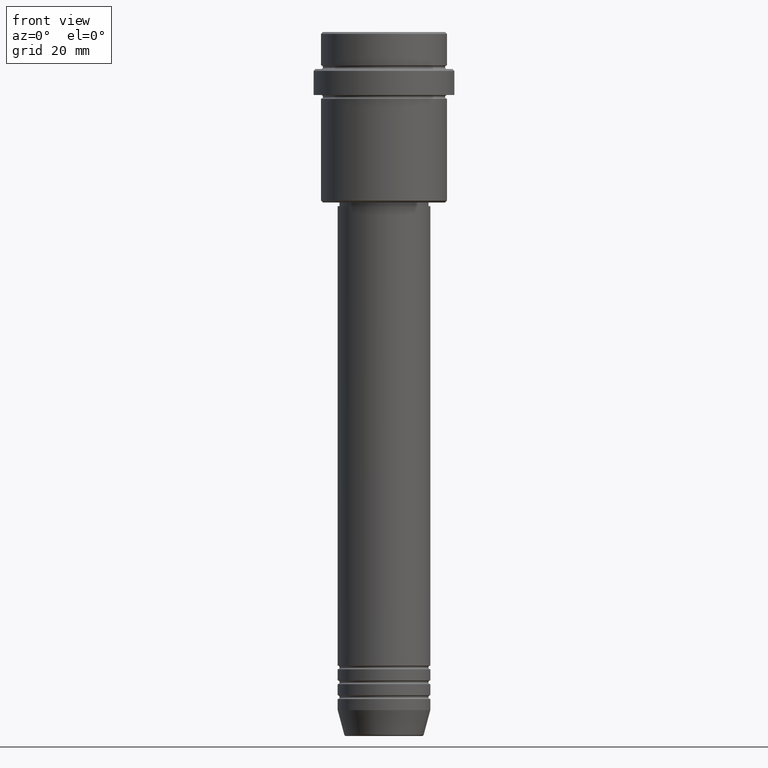
[diagram: clean part render]
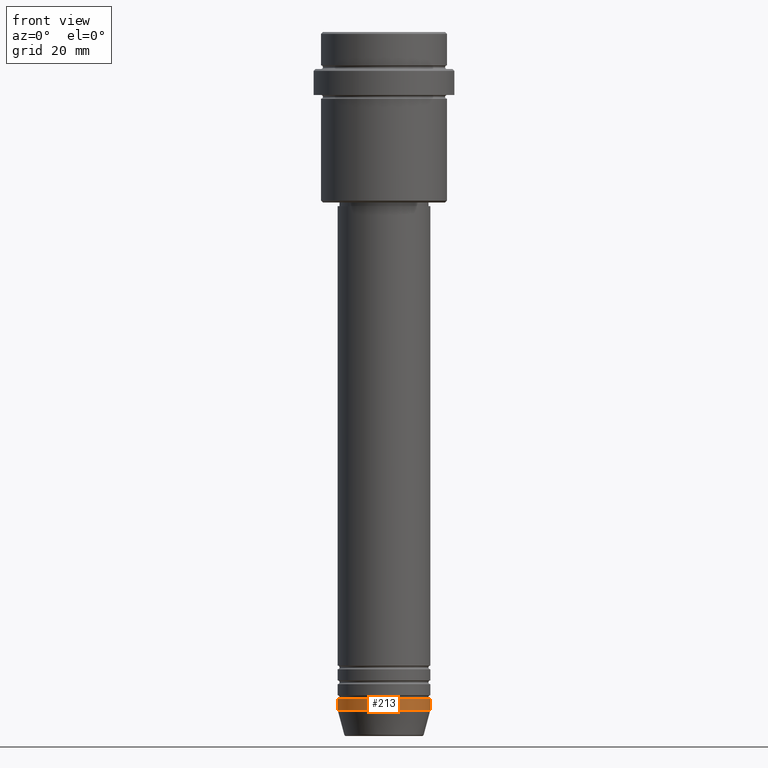
[diagram: same view with one face highlighted and labeled with its STEP entity id]
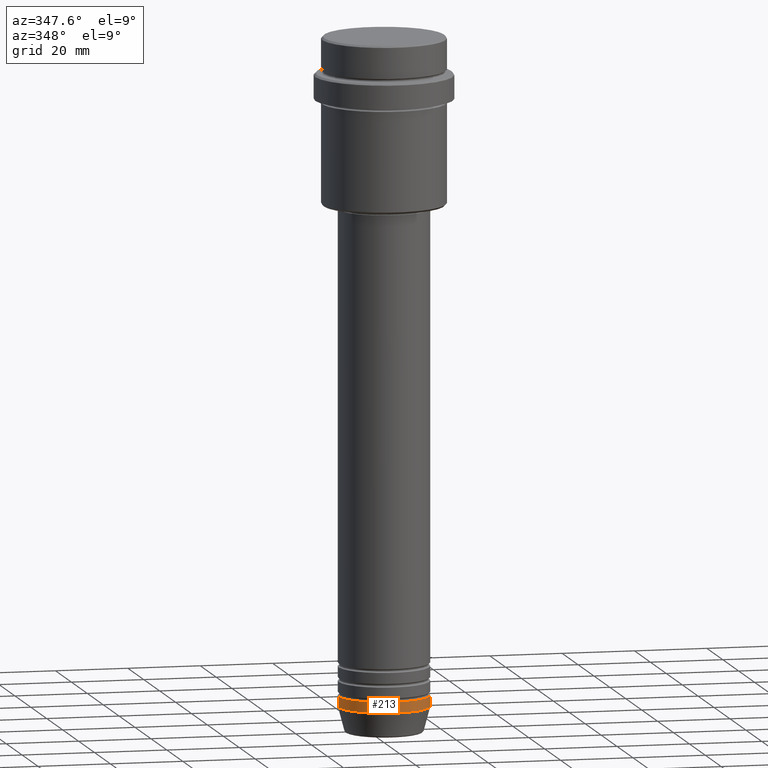
[diagram: same view with one face highlighted and labeled with its STEP entity id]
A machine part, front view. The second image highlights one B-rep face of the part: STEP entity #213.
A second angle (auxiliary view) of the same face is appended — the face is thin or edge-on in the first view.
In plain terms, the highlighted cylindrical surface (partial cylindrical patch) has radius 12.5 mm, axis along (-0, -0, 1).
Its self-contained STEP definition (entity closure, byte-faithful):
#16 = EDGE_CURVE ( 'NONE', #1224, #576, #202, .T. ) ;
#62 = ORIENTED_EDGE ( 'NONE', *, *, #420, .F. ) ;
#131 = FACE_OUTER_BOUND ( 'NONE', #448, .T. ) ;
#146 = DIRECTION ( 'NONE',  ( -0.000000000000000000, -0.000000000000000000, 1.000000000000000000 ) ) ;
#179 = VERTEX_POINT ( 'NONE', #323 ) ;
#196 = CARTESIAN_POINT ( 'NONE',  ( 12.50000000000000000, 0.000000000000000000, -180.0000000000000000 ) ) ;
#202 = CIRCLE ( 'NONE', #908, 12.50000000000000000 ) ;
#213 = ADVANCED_FACE ( 'NONE', ( #131 ), #1124, .T. ) ;
#237 = DIRECTION ( 'NONE',  ( -0.000000000000000000, -0.000000000000000000, 1.000000000000000000 ) ) ;
#240 = CARTESIAN_POINT ( 'NONE',  ( 0.000000000000000000, 0.000000000000000000, 0.000000000000000000 ) ) ;
#311 = CARTESIAN_POINT ( 'NONE',  ( -12.50000000000000000, 1.530808498934191521E-15, -183.0000000000000000 ) ) ;
#323 = CARTESIAN_POINT ( 'NONE',  ( 12.50000000000000000, 0.000000000000000000, -183.0000000000000000 ) ) ;
#345 = DIRECTION ( 'NONE',  ( 1.000000000000000000, 0.000000000000000000, 0.000000000000000000 ) ) ;
#420 = EDGE_CURVE ( 'NONE', #565, #1224, #503, .T. ) ;
#437 = AXIS2_PLACEMENT_3D ( 'NONE', #1030, #665, #442 ) ;
#442 = DIRECTION ( 'NONE',  ( 1.000000000000000000, 0.000000000000000000, 0.000000000000000000 ) ) ;
#448 = EDGE_LOOP ( 'NONE', ( #62, #773, #765, #1078 ) ) ;
#462 = CARTESIAN_POINT ( 'NONE',  ( -12.50000000000000000, 1.530808498934191521E-15, -180.0000000000000000 ) ) ;
#499 = DIRECTION ( 'NONE',  ( -0.000000000000000000, -0.000000000000000000, 1.000000000000000000 ) ) ;
#503 = LINE ( 'NONE', #716, #796 ) ;
#565 = VERTEX_POINT ( 'NONE', #311 ) ;
#576 = VERTEX_POINT ( 'NONE', #196 ) ;
#583 = CIRCLE ( 'NONE', #437, 12.50000000000000000 ) ;
#595 = CARTESIAN_POINT ( 'NONE',  ( 0.000000000000000000, 0.000000000000000000, -180.0000000000000000 ) ) ;
#639 = VECTOR ( 'NONE', #879, 1000.000000000000000 ) ;
#665 = DIRECTION ( 'NONE',  ( -0.000000000000000000, -0.000000000000000000, 1.000000000000000000 ) ) ;
#716 = CARTESIAN_POINT ( 'NONE',  ( -12.50000000000000000, 1.530808498934191521E-15, 0.000000000000000000 ) ) ;
#765 = ORIENTED_EDGE ( 'NONE', *, *, #1036, .T. ) ;
#773 = ORIENTED_EDGE ( 'NONE', *, *, #895, .T. ) ;
#796 = VECTOR ( 'NONE', #146, 1000.000000000000000 ) ;
#864 = LINE ( 'NONE', #1315, #639 ) ;
#879 = DIRECTION ( 'NONE',  ( -0.000000000000000000, -0.000000000000000000, 1.000000000000000000 ) ) ;
#895 = EDGE_CURVE ( 'NONE', #565, #179, #583, .T. ) ;
#908 = AXIS2_PLACEMENT_3D ( 'NONE', #595, #499, #1022 ) ;
#1022 = DIRECTION ( 'NONE',  ( 1.000000000000000000, 0.000000000000000000, 0.000000000000000000 ) ) ;
#1030 = CARTESIAN_POINT ( 'NONE',  ( 0.000000000000000000, 0.000000000000000000, -183.0000000000000000 ) ) ;
#1036 = EDGE_CURVE ( 'NONE', #179, #576, #864, .T. ) ;
#1078 = ORIENTED_EDGE ( 'NONE', *, *, #16, .F. ) ;
#1124 = CYLINDRICAL_SURFACE ( 'NONE', #1402, 12.50000000000000000 ) ;
#1224 = VERTEX_POINT ( 'NONE', #462 ) ;
#1315 = CARTESIAN_POINT ( 'NONE',  ( 12.50000000000000000, 0.000000000000000000, 0.000000000000000000 ) ) ;
#1402 = AXIS2_PLACEMENT_3D ( 'NONE', #240, #237, #345 ) ;